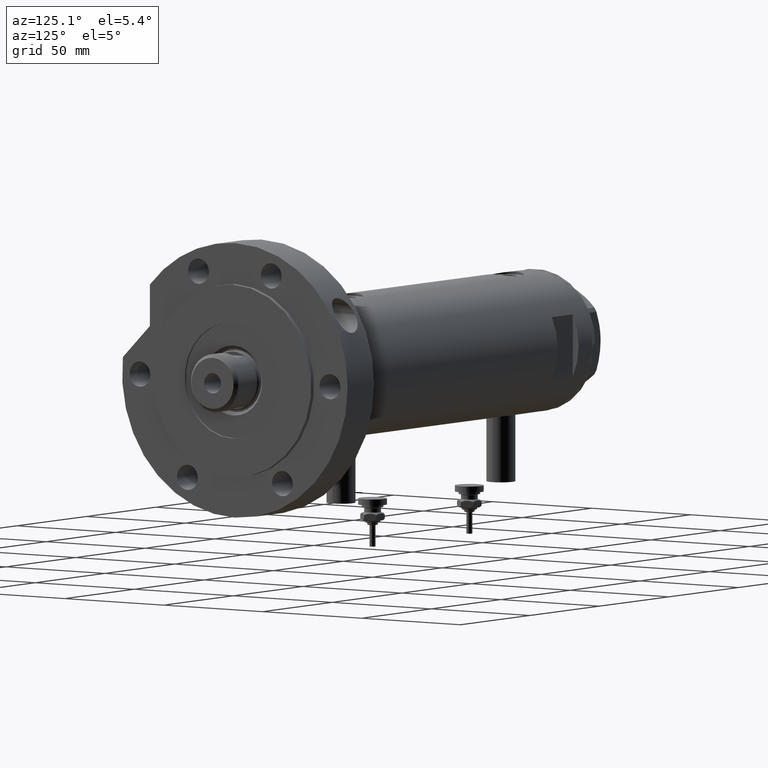
[diagram: clean part render]
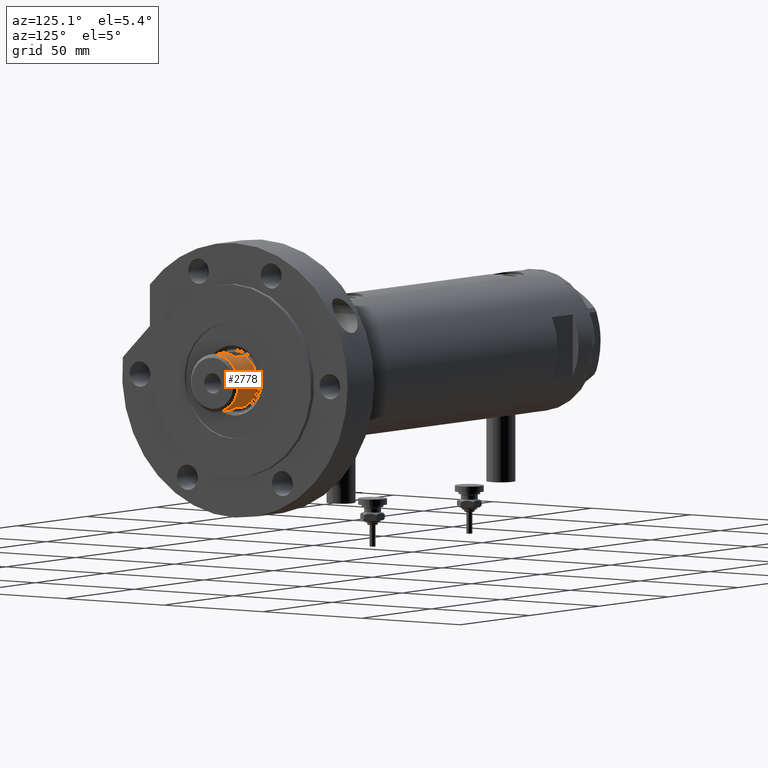
[diagram: same view with one face highlighted and labeled with its STEP entity id]
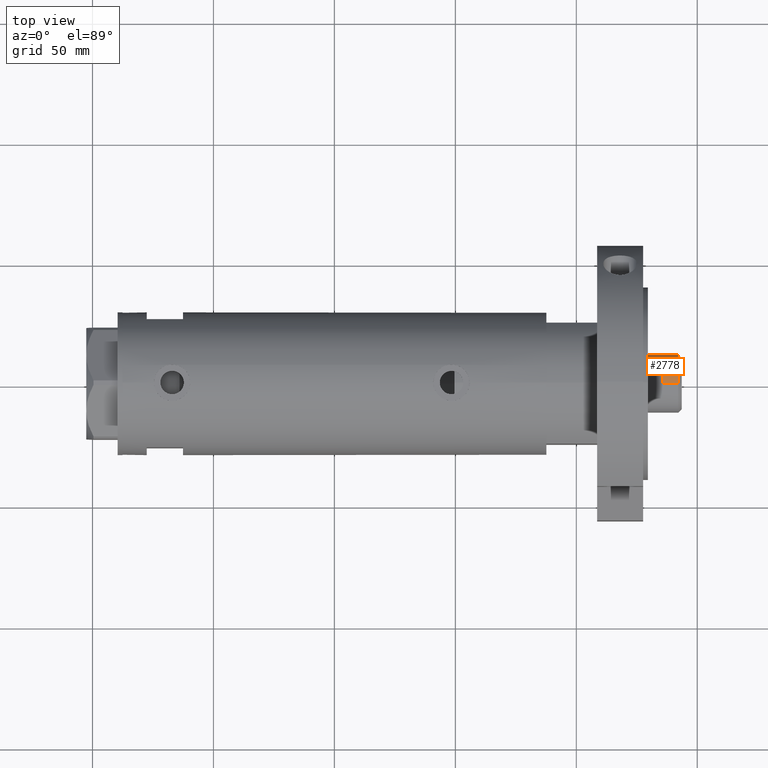
[diagram: same view with one face highlighted and labeled with its STEP entity id]
A machine part, auxiliary view. The second image highlights one B-rep face of the part: STEP entity #2778.
A second angle (top view) of the same face is appended — the face is thin or edge-on in the first view.
In plain terms, the highlighted cylindrical surface (edge-blend (fillet) strip) has radius 12 mm, axis along (-1, -0, 0).
Its self-contained STEP definition (entity closure, byte-faithful):
#61 = EDGE_CURVE ( 'NONE', #2323, #4480, #5973, .T. ) ;
#106 = DIRECTION ( 'NONE',  ( 0.000000000000000000, 0.000000000000000000, -1.000000000000000000 ) ) ;
#415 = VERTEX_POINT ( 'NONE', #1894 ) ;
#511 = AXIS2_PLACEMENT_3D ( 'NONE', #1736, #3449, #5751 ) ;
#642 = ORIENTED_EDGE ( 'NONE', *, *, #61, .T. ) ;
#756 = LINE ( 'NONE', #3614, #3258 ) ;
#815 = CIRCLE ( 'NONE', #4351, 12.00000000000000000 ) ;
#897 = ORIENTED_EDGE ( 'NONE', *, *, #4591, .T. ) ;
#984 = CARTESIAN_POINT ( 'NONE',  ( 10.48861764008966269, 5.830000000000000071, 192.7000000000000171 ) ) ;
#986 = VERTEX_POINT ( 'NONE', #7394 ) ;
#1005 = DIRECTION ( 'NONE',  ( -0.000000000000000000, -0.000000000000000000, -1.000000000000000000 ) ) ;
#1043 = CARTESIAN_POINT ( 'NONE',  ( 10.48861764008966269, 5.830000000000000071, 199.7000000000000171 ) ) ;
#1272 = LINE ( 'NONE', #3009, #1733 ) ;
#1315 = ORIENTED_EDGE ( 'NONE', *, *, #6523, .T. ) ;
#1367 = AXIS2_PLACEMENT_3D ( 'NONE', #6141, #7321, #7247 ) ;
#1407 = DIRECTION ( 'NONE',  ( -0.000000000000000000, -0.000000000000000000, -1.000000000000000000 ) ) ;
#1659 = CARTESIAN_POINT ( 'NONE',  ( 12.00000000000000355, 1.469576158976824342E-15, 199.7000000000000171 ) ) ;
#1733 = VECTOR ( 'NONE', #1877, 1000.000000000000000 ) ;
#1736 = CARTESIAN_POINT ( 'NONE',  ( 0.000000000000000000, 0.000000000000000000, 199.7000000000000171 ) ) ;
#1877 = DIRECTION ( 'NONE',  ( -0.000000000000000000, -0.000000000000000000, -1.000000000000000000 ) ) ;
#1894 = CARTESIAN_POINT ( 'NONE',  ( 10.48861764008966269, 5.830000000000000071, 199.7000000000000171 ) ) ;
#1964 = ORIENTED_EDGE ( 'NONE', *, *, #7067, .T. ) ;
#2323 = VERTEX_POINT ( 'NONE', #984 ) ;
#2370 = LINE ( 'NONE', #5787, #2779 ) ;
#2554 = EDGE_CURVE ( 'NONE', #4584, #3736, #2705, .T. ) ;
#2705 = CIRCLE ( 'NONE', #511, 12.00000000000000178 ) ;
#2778 = ADVANCED_FACE ( 'NONE', ( #5062 ), #5526, .T. ) ;
#2779 = VECTOR ( 'NONE', #6470, 1000.000000000000000 ) ;
#2858 = DIRECTION ( 'NONE',  ( 1.000000000000000000, 0.000000000000000000, 0.000000000000000000 ) ) ;
#3009 = CARTESIAN_POINT ( 'NONE',  ( -12.00000000000000000, 0.000000000000000000, 199.7000000000000171 ) ) ;
#3044 = CARTESIAN_POINT ( 'NONE',  ( 12.00000000000000000, 1.469576158976823947E-15, 206.2999999999999829 ) ) ;
#3224 = ORIENTED_EDGE ( 'NONE', *, *, #4636, .T. ) ;
#3258 = VECTOR ( 'NONE', #1407, 1000.000000000000000 ) ;
#3449 = DIRECTION ( 'NONE',  ( 0.000000000000000000, 0.000000000000000000, 1.000000000000000000 ) ) ;
#3614 = CARTESIAN_POINT ( 'NONE',  ( 12.00000000000000000, 1.469576158976823947E-15, 199.7000000000000171 ) ) ;
#3736 = VERTEX_POINT ( 'NONE', #4706 ) ;
#4083 = LINE ( 'NONE', #1043, #4782 ) ;
#4275 = CARTESIAN_POINT ( 'NONE',  ( 0.000000000000000000, 0.000000000000000000, 206.2999999999999829 ) ) ;
#4351 = AXIS2_PLACEMENT_3D ( 'NONE', #4275, #106, #6615 ) ;
#4357 = EDGE_CURVE ( 'NONE', #986, #3736, #1272, .T. ) ;
#4480 = VERTEX_POINT ( 'NONE', #5590 ) ;
#4577 = ORIENTED_EDGE ( 'NONE', *, *, #4357, .F. ) ;
#4584 = VERTEX_POINT ( 'NONE', #6888 ) ;
#4591 = EDGE_CURVE ( 'NONE', #5315, #415, #4910, .T. ) ;
#4636 = EDGE_CURVE ( 'NONE', #415, #2323, #4083, .T. ) ;
#4660 = DIRECTION ( 'NONE',  ( 0.000000000000000000, 0.000000000000000000, 1.000000000000000000 ) ) ;
#4706 = CARTESIAN_POINT ( 'NONE',  ( -12.00000000000000355, 0.000000000000000000, 199.7000000000000171 ) ) ;
#4782 = VECTOR ( 'NONE', #1005, 1000.000000000000000 ) ;
#4910 = CIRCLE ( 'NONE', #5039, 12.00000000000000178 ) ;
#5039 = AXIS2_PLACEMENT_3D ( 'NONE', #5130, #4660, #2858 ) ;
#5062 = FACE_OUTER_BOUND ( 'NONE', #5542, .T. ) ;
#5111 = CARTESIAN_POINT ( 'NONE',  ( 0.000000000000000000, 0.000000000000000000, 192.7000000000000171 ) ) ;
#5130 = CARTESIAN_POINT ( 'NONE',  ( 0.000000000000000000, 0.000000000000000000, 199.7000000000000171 ) ) ;
#5189 = DIRECTION ( 'NONE',  ( 0.000000000000000000, 0.000000000000000000, 1.000000000000000000 ) ) ;
#5315 = VERTEX_POINT ( 'NONE', #1659 ) ;
#5353 = EDGE_CURVE ( 'NONE', #4584, #4480, #2370, .T. ) ;
#5526 = CYLINDRICAL_SURFACE ( 'NONE', #1367, 12.00000000000000000 ) ;
#5537 = ORIENTED_EDGE ( 'NONE', *, *, #2554, .T. ) ;
#5542 = EDGE_LOOP ( 'NONE', ( #1315, #1964, #897, #3224, #642, #7226, #5537, #4577 ) ) ;
#5590 = CARTESIAN_POINT ( 'NONE',  ( -10.48861764008966269, 5.829999999999960991, 192.7000000000000171 ) ) ;
#5751 = DIRECTION ( 'NONE',  ( 1.000000000000000000, 0.000000000000000000, 0.000000000000000000 ) ) ;
#5787 = CARTESIAN_POINT ( 'NONE',  ( -10.48861764008966269, 5.829999999999999183, 199.7000000000000171 ) ) ;
#5973 = CIRCLE ( 'NONE', #6098, 11.99999999999998224 ) ;
#6098 = AXIS2_PLACEMENT_3D ( 'NONE', #5111, #5189, #7012 ) ;
#6141 = CARTESIAN_POINT ( 'NONE',  ( 0.000000000000000000, 0.000000000000000000, 199.7000000000000171 ) ) ;
#6470 = DIRECTION ( 'NONE',  ( -0.000000000000000000, -0.000000000000000000, -1.000000000000000000 ) ) ;
#6523 = EDGE_CURVE ( 'NONE', #986, #6594, #815, .T. ) ;
#6594 = VERTEX_POINT ( 'NONE', #3044 ) ;
#6615 = DIRECTION ( 'NONE',  ( 1.000000000000000000, 0.000000000000000000, 0.000000000000000000 ) ) ;
#6888 = CARTESIAN_POINT ( 'NONE',  ( -10.48861764008966269, 5.829999999999999183, 199.7000000000000171 ) ) ;
#7012 = DIRECTION ( 'NONE',  ( 1.000000000000000000, 0.000000000000000000, 0.000000000000000000 ) ) ;
#7067 = EDGE_CURVE ( 'NONE', #6594, #5315, #756, .T. ) ;
#7226 = ORIENTED_EDGE ( 'NONE', *, *, #5353, .F. ) ;
#7247 = DIRECTION ( 'NONE',  ( -1.000000000000000000, 0.000000000000000000, 0.000000000000000000 ) ) ;
#7321 = DIRECTION ( 'NONE',  ( -0.000000000000000000, -0.000000000000000000, -1.000000000000000000 ) ) ;
#7394 = CARTESIAN_POINT ( 'NONE',  ( -12.00000000000000000, 0.000000000000000000, 206.2999999999999829 ) ) ;